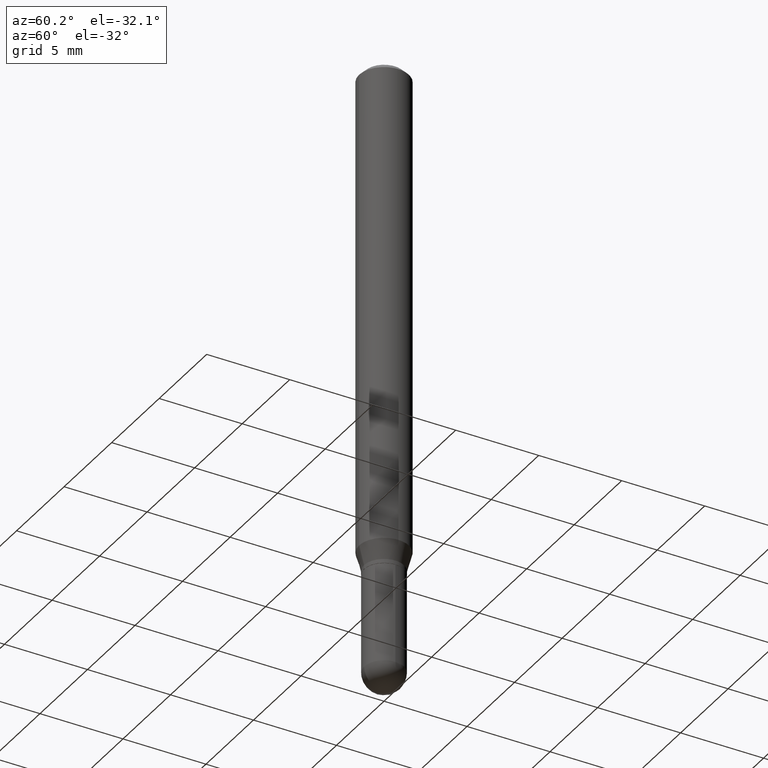
[diagram: clean part render]
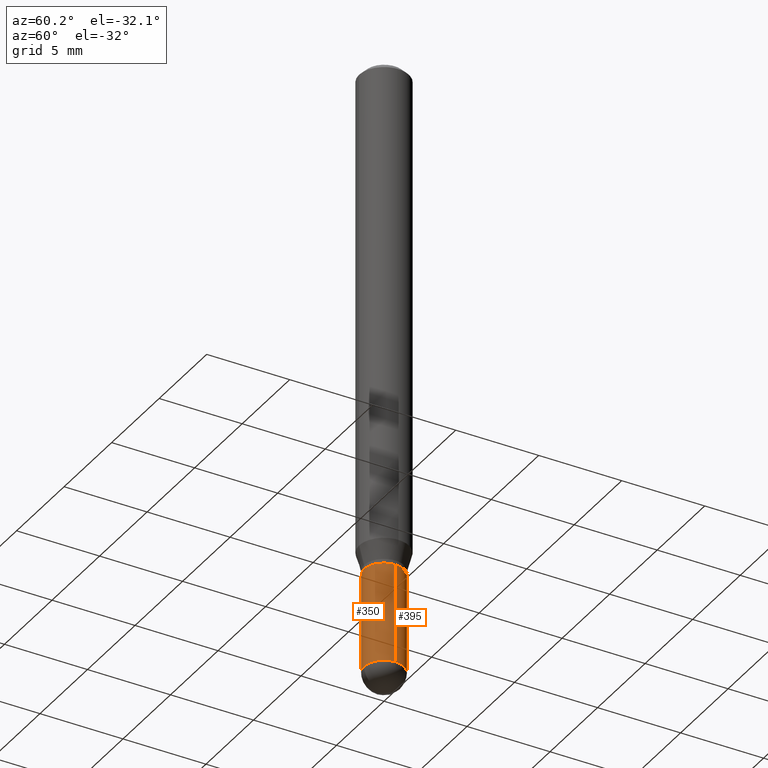
[diagram: same view with one multi-face feature highlighted, each face labeled with its STEP entity id]
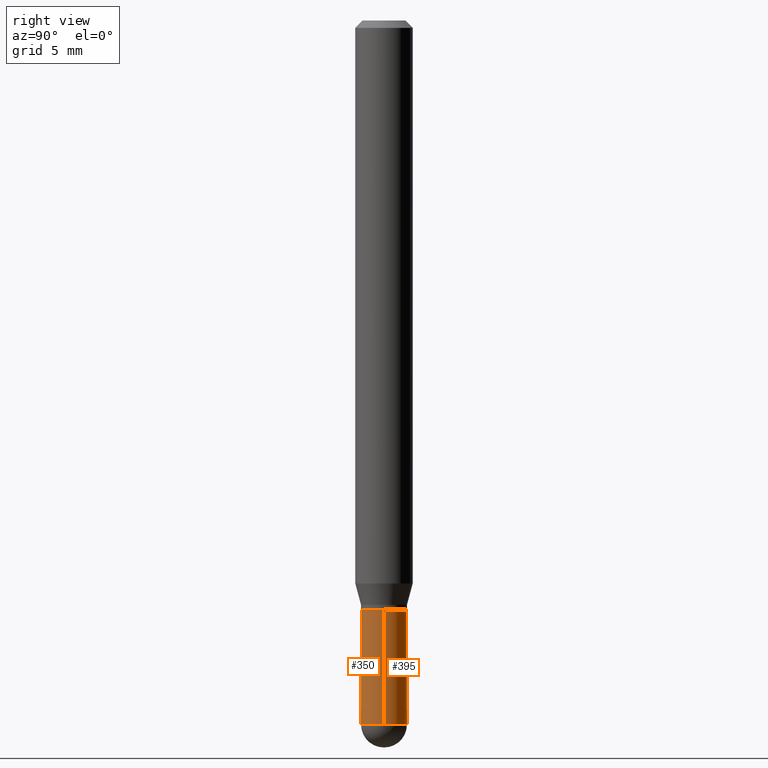
[diagram: same view with one multi-face feature highlighted, each face labeled with its STEP entity id]
A machine part, auxiliary view. The highlighted faces form ONE feature: a constant-radius fillet chain: 2 tangent blend faces with common blend radius 1.2001 mm. The faces share edges in the B-rep.
A second angle (right view) of the same feature is appended — it is thin or edge-on in the first view.
Their STEP definitions:
[1] entity #395 (Cylinder):
#2 = VERTEX_POINT ( 'NONE', #166 ) ;
#11 = CIRCLE ( 'NONE', #140, 0.04724999999999999339 ) ;
#20 = CARTESIAN_POINT ( 'NONE',  ( 3.357314426466824445E-16, 0.04724999999999490025, -1.448850000000000415 ) ) ;
#35 = VERTEX_POINT ( 'NONE', #483 ) ;
#37 = CIRCLE ( 'NONE', #44, 0.04724999999999998646 ) ;
#44 = AXIS2_PLACEMENT_3D ( 'NONE', #366, #451, #100 ) ;
#49 = CARTESIAN_POINT ( 'NONE',  ( 0.000000000000000000, 0.000000000000000000, 0.000000000000000000 ) ) ;
#57 = ORIENTED_EDGE ( 'NONE', *, *, #320, .T. ) ;
#58 = CARTESIAN_POINT ( 'NONE',  ( 0.04724999999999998646, -3.299449865206760074E-16, 2.303993526563579130E-30 ) ) ;
#60 = VERTEX_POINT ( 'NONE', #145 ) ;
#74 = EDGE_CURVE ( 'NONE', #259, #485, #37, .T. ) ;
#100 = DIRECTION ( 'NONE',  ( 1.000000000000000000, -6.982962677686267499E-15, 0.000000000000000000 ) ) ;
#111 = DIRECTION ( 'NONE',  ( 1.000000000000000000, -6.982962677686267499E-15, 0.000000000000000000 ) ) ;
#122 = DIRECTION ( 'NONE',  ( 1.000000000000000000, -6.982962677686266711E-15, 4.876176775795935793E-29 ) ) ;
#127 = VECTOR ( 'NONE', #472, 39.37007874015748143 ) ;
#131 = LINE ( 'NONE', #58, #386 ) ;
#140 = AXIS2_PLACEMENT_3D ( 'NONE', #270, #423, #502 ) ;
#145 = CARTESIAN_POINT ( 'NONE',  ( -0.04724999999999999339, -4.310470061985398025E-15, -1.212599999999999900 ) ) ;
#159 = CYLINDRICAL_SURFACE ( 'NONE', #215, 0.04724999999999998646 ) ;
#163 = FACE_OUTER_BOUND ( 'NONE', #291, .T. ) ;
#166 = CARTESIAN_POINT ( 'NONE',  ( 0.04724999999999999339, -4.563715258001873701E-15, -1.212599999999999900 ) ) ;
#172 = CARTESIAN_POINT ( 'NONE',  ( 3.543117479841335070E-29, -5.058632737782891656E-15, -1.448849999999999971 ) ) ;
#187 = DIRECTION ( 'NONE',  ( -2.445468806185136597E-29, 3.491481338843145583E-15, 1.000000000000000000 ) ) ;
#210 = AXIS2_PLACEMENT_3D ( 'NONE', #172, #187, #111 ) ;
#215 = AXIS2_PLACEMENT_3D ( 'NONE', #49, #318, #122 ) ;
#216 = DIRECTION ( 'NONE',  ( -2.445468806185136877E-29, 3.491481338843145188E-15, 1.000000000000000000 ) ) ;
#256 = ORIENTED_EDGE ( 'NONE', *, *, #74, .T. ) ;
#259 = VERTEX_POINT ( 'NONE', #327 ) ;
#262 = ORIENTED_EDGE ( 'NONE', *, *, #308, .F. ) ;
#270 = CARTESIAN_POINT ( 'NONE',  ( 2.965375474380096235E-29, -4.233770271481197693E-15, -1.212599999999999900 ) ) ;
#291 = EDGE_LOOP ( 'NONE', ( #341, #57, #262, #380, #256 ) ) ;
#308 = EDGE_CURVE ( 'NONE', #2, #60, #11, .T. ) ;
#318 = DIRECTION ( 'NONE',  ( -2.445468806185136597E-29, 3.491481338843145583E-15, 1.000000000000000000 ) ) ;
#320 = EDGE_CURVE ( 'NONE', #35, #60, #465, .T. ) ;
#327 = CARTESIAN_POINT ( 'NONE',  ( 0.04724999999999998646, -4.976146491152720682E-15, -1.448849999999999971 ) ) ;
#341 = ORIENTED_EDGE ( 'NONE', *, *, #499, .T. ) ;
#344 = CARTESIAN_POINT ( 'NONE',  ( -0.04724999999999998646, 3.357314426466472416E-16, -2.324196830145442465E-30 ) ) ;
#356 = CIRCLE ( 'NONE', #210, 0.04724999999999998646 ) ;
#366 = CARTESIAN_POINT ( 'NONE',  ( 3.543117479841335070E-29, -5.058632737782891656E-15, -1.448849999999999971 ) ) ;
#380 = ORIENTED_EDGE ( 'NONE', *, *, #474, .F. ) ;
#386 = VECTOR ( 'NONE', #216, 39.37007874015748143 ) ;
#395 = ADVANCED_FACE ( 'NONE', ( #163 ), #159, .T. ) ;
#423 = DIRECTION ( 'NONE',  ( -2.445468806185136597E-29, 3.491481338843145583E-15, 1.000000000000000000 ) ) ;
#451 = DIRECTION ( 'NONE',  ( -2.445468806185136597E-29, 3.491481338843145583E-15, 1.000000000000000000 ) ) ;
#465 = LINE ( 'NONE', #344, #127 ) ;
#472 = DIRECTION ( 'NONE',  ( -2.445468806185136877E-29, 3.491481338843145188E-15, 1.000000000000000000 ) ) ;
#474 = EDGE_CURVE ( 'NONE', #259, #2, #131, .T. ) ;
#483 = CARTESIAN_POINT ( 'NONE',  ( -0.04724999999999998646, -4.310470061985398025E-15, -1.448849999999999971 ) ) ;
#485 = VERTEX_POINT ( 'NONE', #20 ) ;
#499 = EDGE_CURVE ( 'NONE', #485, #35, #356, .T. ) ;
#502 = DIRECTION ( 'NONE',  ( 1.000000000000000000, -6.982962677686256455E-15, 0.000000000000000000 ) ) ;
[2] entity #350 (Cylinder):
#2 = VERTEX_POINT ( 'NONE', #166 ) ;
#18 = DIRECTION ( 'NONE',  ( 1.000000000000000000, -6.982962677686267499E-15, 0.000000000000000000 ) ) ;
#23 = DIRECTION ( 'NONE',  ( -2.445468806185136597E-29, 3.491481338843145583E-15, 1.000000000000000000 ) ) ;
#33 = ORIENTED_EDGE ( 'NONE', *, *, #320, .F. ) ;
#35 = VERTEX_POINT ( 'NONE', #483 ) ;
#51 = EDGE_CURVE ( 'NONE', #35, #463, #195, .T. ) ;
#53 = AXIS2_PLACEMENT_3D ( 'NONE', #180, #406, #130 ) ;
#58 = CARTESIAN_POINT ( 'NONE',  ( 0.04724999999999998646, -3.299449865206760074E-16, 2.303993526563579130E-30 ) ) ;
#60 = VERTEX_POINT ( 'NONE', #145 ) ;
#65 = EDGE_LOOP ( 'NONE', ( #33, #443, #162, #498, #191 ) ) ;
#94 = CIRCLE ( 'NONE', #418, 0.04724999999999998646 ) ;
#108 = DIRECTION ( 'NONE',  ( -2.445468806185136597E-29, 3.491481338843145583E-15, 1.000000000000000000 ) ) ;
#120 = AXIS2_PLACEMENT_3D ( 'NONE', #267, #108, #261 ) ;
#127 = VECTOR ( 'NONE', #472, 39.37007874015748143 ) ;
#130 = DIRECTION ( 'NONE',  ( 1.000000000000000000, -6.982962677686256455E-15, 0.000000000000000000 ) ) ;
#131 = LINE ( 'NONE', #58, #386 ) ;
#132 = CARTESIAN_POINT ( 'NONE',  ( 3.543117479841335070E-29, -5.058632737782891656E-15, -1.448849999999999971 ) ) ;
#141 = FACE_OUTER_BOUND ( 'NONE', #65, .T. ) ;
#145 = CARTESIAN_POINT ( 'NONE',  ( -0.04724999999999999339, -4.310470061985398025E-15, -1.212599999999999900 ) ) ;
#162 = ORIENTED_EDGE ( 'NONE', *, *, #495, .T. ) ;
#166 = CARTESIAN_POINT ( 'NONE',  ( 0.04724999999999999339, -4.563715258001873701E-15, -1.212599999999999900 ) ) ;
#180 = CARTESIAN_POINT ( 'NONE',  ( 2.965375474380096235E-29, -4.233770271481197693E-15, -1.212599999999999900 ) ) ;
#191 = ORIENTED_EDGE ( 'NONE', *, *, #200, .F. ) ;
#195 = CIRCLE ( 'NONE', #264, 0.04724999999999998646 ) ;
#200 = EDGE_CURVE ( 'NONE', #60, #2, #362, .T. ) ;
#201 = CARTESIAN_POINT ( 'NONE',  ( -3.299449865206404101E-16, -0.04725000000000502409, -1.448849999999999749 ) ) ;
#216 = DIRECTION ( 'NONE',  ( -2.445468806185136877E-29, 3.491481338843145188E-15, 1.000000000000000000 ) ) ;
#254 = DIRECTION ( 'NONE',  ( 1.000000000000000000, -6.982962677686267499E-15, 0.000000000000000000 ) ) ;
#259 = VERTEX_POINT ( 'NONE', #327 ) ;
#261 = DIRECTION ( 'NONE',  ( 1.000000000000000000, -6.982962677686266711E-15, 4.876176775795935793E-29 ) ) ;
#264 = AXIS2_PLACEMENT_3D ( 'NONE', #132, #23, #254 ) ;
#267 = CARTESIAN_POINT ( 'NONE',  ( 0.000000000000000000, 0.000000000000000000, 0.000000000000000000 ) ) ;
#299 = CYLINDRICAL_SURFACE ( 'NONE', #120, 0.04724999999999998646 ) ;
#320 = EDGE_CURVE ( 'NONE', #35, #60, #465, .T. ) ;
#327 = CARTESIAN_POINT ( 'NONE',  ( 0.04724999999999998646, -4.976146491152720682E-15, -1.448849999999999971 ) ) ;
#344 = CARTESIAN_POINT ( 'NONE',  ( -0.04724999999999998646, 3.357314426466472416E-16, -2.324196830145442465E-30 ) ) ;
#350 = ADVANCED_FACE ( 'NONE', ( #141 ), #299, .T. ) ;
#362 = CIRCLE ( 'NONE', #53, 0.04724999999999999339 ) ;
#363 = CARTESIAN_POINT ( 'NONE',  ( 3.543117479841335070E-29, -5.058632737782891656E-15, -1.448849999999999971 ) ) ;
#386 = VECTOR ( 'NONE', #216, 39.37007874015748143 ) ;
#406 = DIRECTION ( 'NONE',  ( -2.445468806185136597E-29, 3.491481338843145583E-15, 1.000000000000000000 ) ) ;
#418 = AXIS2_PLACEMENT_3D ( 'NONE', #363, #486, #18 ) ;
#443 = ORIENTED_EDGE ( 'NONE', *, *, #51, .T. ) ;
#463 = VERTEX_POINT ( 'NONE', #201 ) ;
#465 = LINE ( 'NONE', #344, #127 ) ;
#472 = DIRECTION ( 'NONE',  ( -2.445468806185136877E-29, 3.491481338843145188E-15, 1.000000000000000000 ) ) ;
#474 = EDGE_CURVE ( 'NONE', #259, #2, #131, .T. ) ;
#483 = CARTESIAN_POINT ( 'NONE',  ( -0.04724999999999998646, -4.310470061985398025E-15, -1.448849999999999971 ) ) ;
#486 = DIRECTION ( 'NONE',  ( -2.445468806185136597E-29, 3.491481338843145583E-15, 1.000000000000000000 ) ) ;
#495 = EDGE_CURVE ( 'NONE', #463, #259, #94, .T. ) ;
#498 = ORIENTED_EDGE ( 'NONE', *, *, #474, .T. ) ;